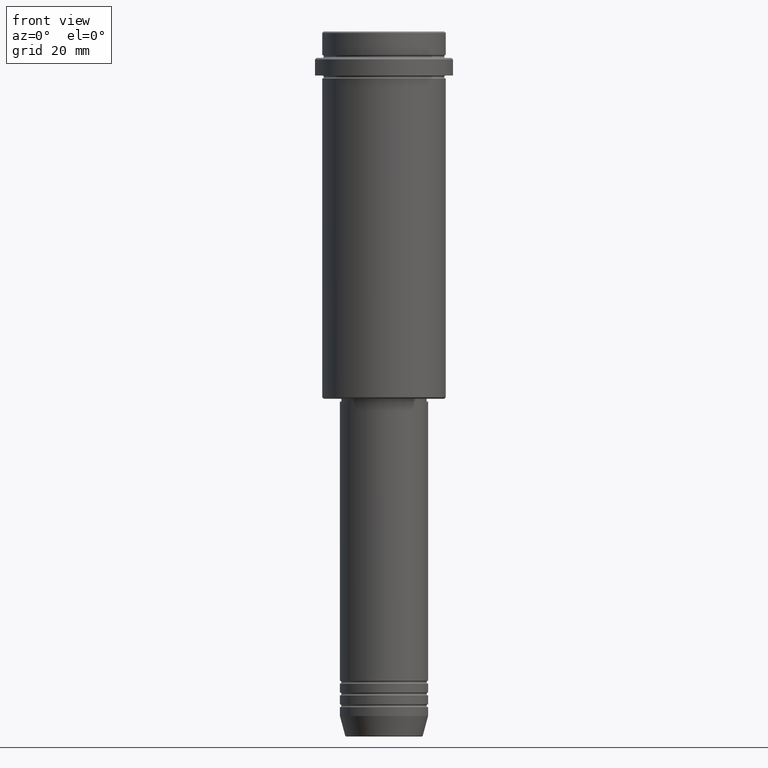
[diagram: clean part render]
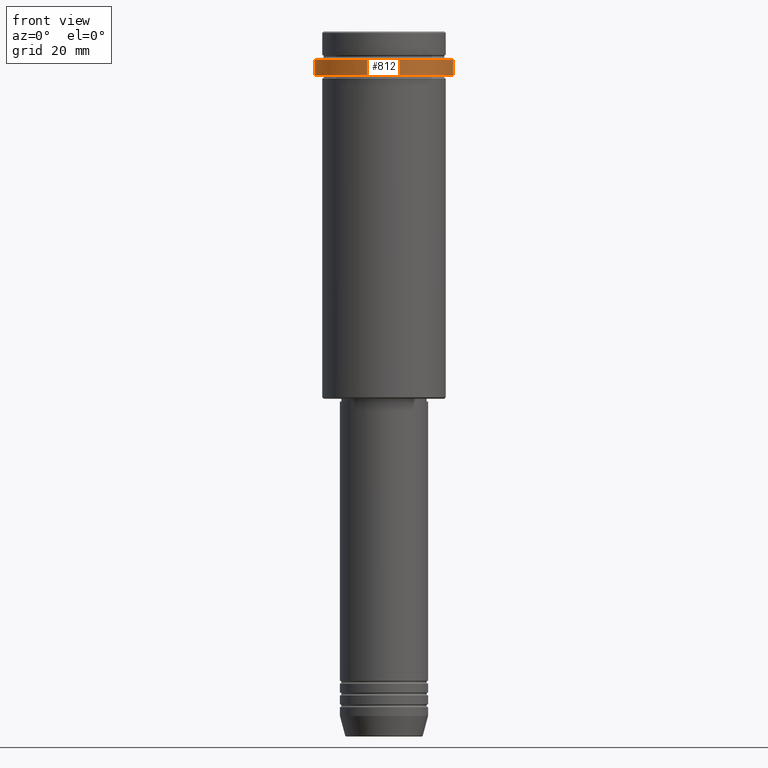
[diagram: same view with one face highlighted and labeled with its STEP entity id]
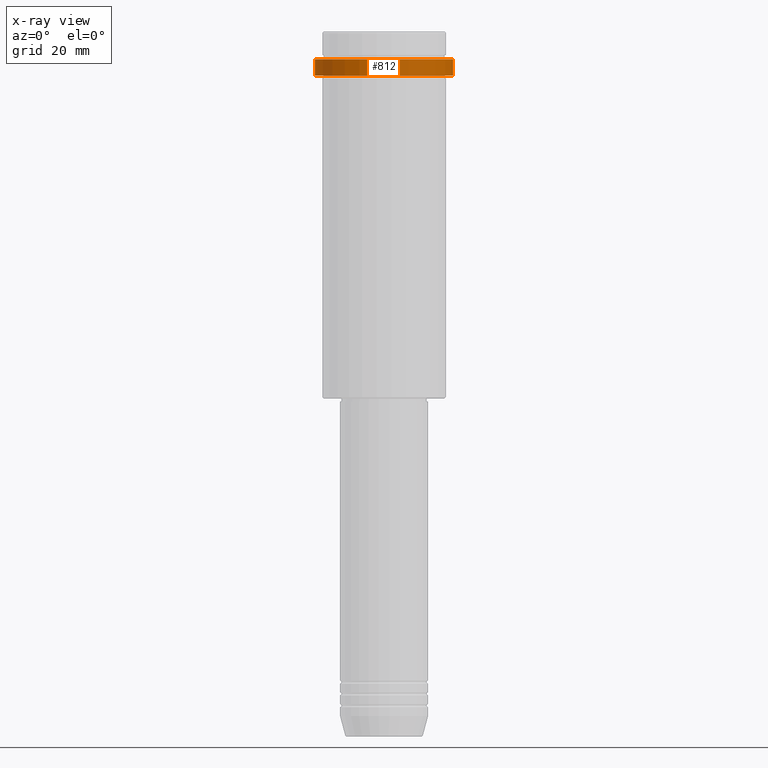
[diagram: x-ray of the same camera — body ghosted, the highlighted face saturated]
A machine part, front view. The second image highlights one B-rep face of the part: STEP entity #812.
The next image is the same camera in x-ray: the body ghosted, the highlighted face saturated — about 0% of this face is hidden behind the body in this view.
In plain terms, the highlighted cylindrical surface (partial cylindrical patch) has radius 23.5 mm, axis along (-0, -0, 1).
Its self-contained STEP definition (entity closure, byte-faithful):
#10 = DIRECTION ( 'NONE',  ( -0.000000000000000000, -0.000000000000000000, 1.000000000000000000 ) ) ;
#61 = CIRCLE ( 'NONE', #250, 23.50000000000000000 ) ;
#99 = DIRECTION ( 'NONE',  ( -0.000000000000000000, -0.000000000000000000, 1.000000000000000000 ) ) ;
#128 = CARTESIAN_POINT ( 'NONE',  ( 0.000000000000000000, 0.000000000000000000, -15.00000000000000000 ) ) ;
#194 = CARTESIAN_POINT ( 'NONE',  ( -23.50000000000000000, 2.877919977996280320E-15, -9.499999999999971578 ) ) ;
#250 = AXIS2_PLACEMENT_3D ( 'NONE', #616, #610, #503 ) ;
#302 = DIRECTION ( 'NONE',  ( -0.000000000000000000, -0.000000000000000000, 1.000000000000000000 ) ) ;
#388 = EDGE_CURVE ( 'NONE', #619, #1244, #61, .T. ) ;
#401 = CYLINDRICAL_SURFACE ( 'NONE', #1023, 23.50000000000000000 ) ;
#489 = CARTESIAN_POINT ( 'NONE',  ( 23.50000000000000355, 0.000000000000000000, -15.00000000000000000 ) ) ;
#502 = FACE_OUTER_BOUND ( 'NONE', #778, .T. ) ;
#503 = DIRECTION ( 'NONE',  ( 1.000000000000000000, 0.000000000000000000, 0.000000000000000000 ) ) ;
#507 = VERTEX_POINT ( 'NONE', #665 ) ;
#514 = EDGE_CURVE ( 'NONE', #507, #1307, #1389, .T. ) ;
#567 = ORIENTED_EDGE ( 'NONE', *, *, #791, .F. ) ;
#610 = DIRECTION ( 'NONE',  ( 0.000000000000000000, 0.000000000000000000, -1.000000000000000000 ) ) ;
#616 = CARTESIAN_POINT ( 'NONE',  ( 0.000000000000000000, 0.000000000000000000, -9.499999999999971578 ) ) ;
#619 = VERTEX_POINT ( 'NONE', #681 ) ;
#665 = CARTESIAN_POINT ( 'NONE',  ( -23.50000000000000711, 2.877919977996281109E-15, -15.00000000000000000 ) ) ;
#681 = CARTESIAN_POINT ( 'NONE',  ( 23.50000000000000000, 0.000000000000000000, -9.499999999999971578 ) ) ;
#741 = DIRECTION ( 'NONE',  ( 1.000000000000000000, 0.000000000000000000, 0.000000000000000000 ) ) ;
#771 = AXIS2_PLACEMENT_3D ( 'NONE', #128, #99, #1324 ) ;
#778 = EDGE_LOOP ( 'NONE', ( #567, #1320, #1125, #834 ) ) ;
#791 = EDGE_CURVE ( 'NONE', #507, #1244, #846, .T. ) ;
#812 = ADVANCED_FACE ( 'NONE', ( #502 ), #401, .T. ) ;
#834 = ORIENTED_EDGE ( 'NONE', *, *, #388, .T. ) ;
#838 = CARTESIAN_POINT ( 'NONE',  ( -23.50000000000000000, 2.877919977996280320E-15, 0.000000000000000000 ) ) ;
#846 = LINE ( 'NONE', #838, #1210 ) ;
#878 = CARTESIAN_POINT ( 'NONE',  ( 23.50000000000000000, 0.000000000000000000, 0.000000000000000000 ) ) ;
#933 = VECTOR ( 'NONE', #10, 1000.000000000000000 ) ;
#967 = EDGE_CURVE ( 'NONE', #1307, #619, #987, .T. ) ;
#987 = LINE ( 'NONE', #878, #933 ) ;
#1023 = AXIS2_PLACEMENT_3D ( 'NONE', #1265, #302, #741 ) ;
#1125 = ORIENTED_EDGE ( 'NONE', *, *, #967, .T. ) ;
#1210 = VECTOR ( 'NONE', #1385, 1000.000000000000000 ) ;
#1244 = VERTEX_POINT ( 'NONE', #194 ) ;
#1265 = CARTESIAN_POINT ( 'NONE',  ( 0.000000000000000000, 0.000000000000000000, 0.000000000000000000 ) ) ;
#1307 = VERTEX_POINT ( 'NONE', #489 ) ;
#1320 = ORIENTED_EDGE ( 'NONE', *, *, #514, .T. ) ;
#1324 = DIRECTION ( 'NONE',  ( 1.000000000000000000, 0.000000000000000000, 0.000000000000000000 ) ) ;
#1385 = DIRECTION ( 'NONE',  ( -0.000000000000000000, -0.000000000000000000, 1.000000000000000000 ) ) ;
#1389 = CIRCLE ( 'NONE', #771, 23.50000000000000355 ) ;